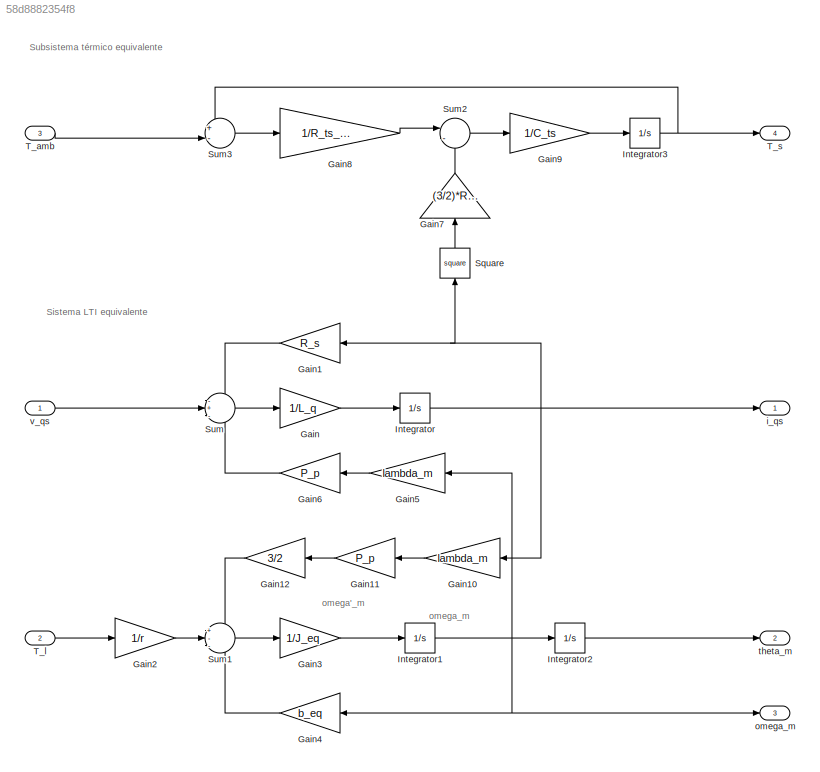
MODEL slx_58d8882354f8
KIND model
CONFIG AbsTol = auto
CONFIG EnableMultiTasking = off
CONFIG FixedStep = auto
CONFIG MaxStep = auto
CONFIG MinStep = auto
CONFIG RelTol = 1e-3
CONFIG SampleTimeConstraint = Unconstrained
CONFIG SolverName = VariableStepAuto
CONFIG StartTime = 0.0
CONFIG StopTime = 10.0
BLOCK [Gain] Gain
  Gain = 1/L_q
BLOCK [Gain] Gain1
  Gain = R_s
BLOCK [Gain] Gain10
  Gain = lambda_m
BLOCK [Gain] Gain11
  Gain = P_p
BLOCK [Gain] Gain12
  Gain = 3/2
BLOCK [Gain] Gain2
  Gain = 1/r
BLOCK [Gain] Gain3
  Gain = 1/J_eq
BLOCK [Gain] Gain4
  Gain = b_eq
BLOCK [Gain] Gain5
  Gain = lambda_m
BLOCK [Gain] Gain6
  Gain = P_p
BLOCK [Gain] Gain7
  Gain = (3/2)*R_s
  NameLocation = left
BLOCK [Gain] Gain8
  Gain = 1/R_ts_amb
BLOCK [Gain] Gain9
  Gain = 1/C_ts
BLOCK [Integrator] Integrator
BLOCK [Integrator] Integrator1
BLOCK [Integrator] Integrator2
BLOCK [Integrator] Integrator3
BLOCK [Math] Square
  NameLocation = right
  Operator = square
BLOCK [Sum] Sum
  Inputs = -+-
BLOCK [Sum] Sum1
  Inputs = +--
BLOCK [Sum] Sum2
  Inputs = |-+
BLOCK [Sum] Sum3
  Inputs = +-|
BLOCK [Inport] T_amb
  Port = 3
BLOCK [Inport] T_l
  Port = 2
BLOCK [Outport] T_s
  Port = 4
BLOCK [Outport] i_qs
BLOCK [Outport] omega_m
  Port = 3
BLOCK [Outport] theta_m
  Port = 2
BLOCK [Inport] v_qs
ANNOTATION (root): Sistema LTI equivalente
ANNOTATION (root): Subsistema térmico equivalente
ANNOTATION (root): omega'_m
ANNOTATION (root): omega_m
LINE Gain10:1 -> Gain11:1
LINE Gain11:1 -> Gain12:1
LINE Gain12:1 -> Sum1:1
LINE Gain1:1 -> Sum:1
LINE Gain2:1 -> Sum1:2
LINE Gain3:1 -> Integrator1:1
LINE Gain4:1 -> Sum1:3
LINE Gain5:1 -> Gain6:1
LINE Gain6:1 -> Sum:3
LINE Gain7:1 -> Sum2:2
LINE Gain8:1 -> Sum2:1
LINE Gain9:1 -> Integrator3:1
LINE Gain:1 -> Integrator:1
NET Integrator1:1 -> Gain4:1, Gain5:1, Integrator2:1, omega_m:1
LINE Integrator2:1 -> theta_m:1
NET Integrator3:1 -> Sum3:1, T_s:1
NET Integrator:1 -> Gain10:1, Gain1:1, Square:1, i_qs:1
LINE Square:1 -> Gain7:1
LINE Sum1:1 -> Gain3:1
LINE Sum2:1 -> Gain9:1
LINE Sum3:1 -> Gain8:1
LINE Sum:1 -> Gain:1
LINE T_amb:1 -> Sum3:2
LINE T_l:1 -> Gain2:1
LINE v_qs:1 -> Sum:2
note: NET lines group one-source signal fan-out (src -> all destinations, sorted); 1:1 wires keep LINE
